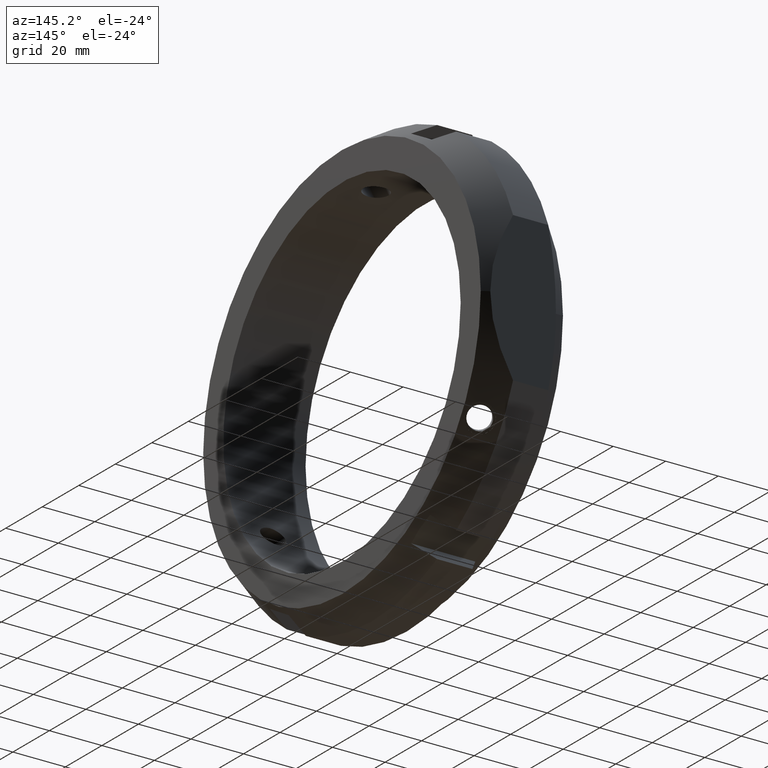
[diagram: clean part render]
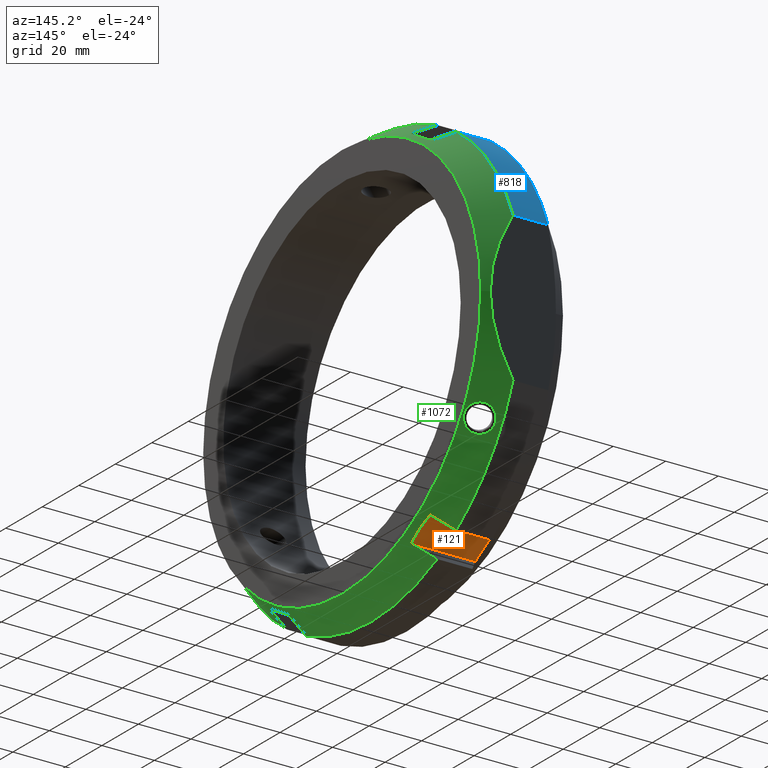
[diagram: same view with three faces highlighted in distinct colors, each labeled with its STEP entity id]
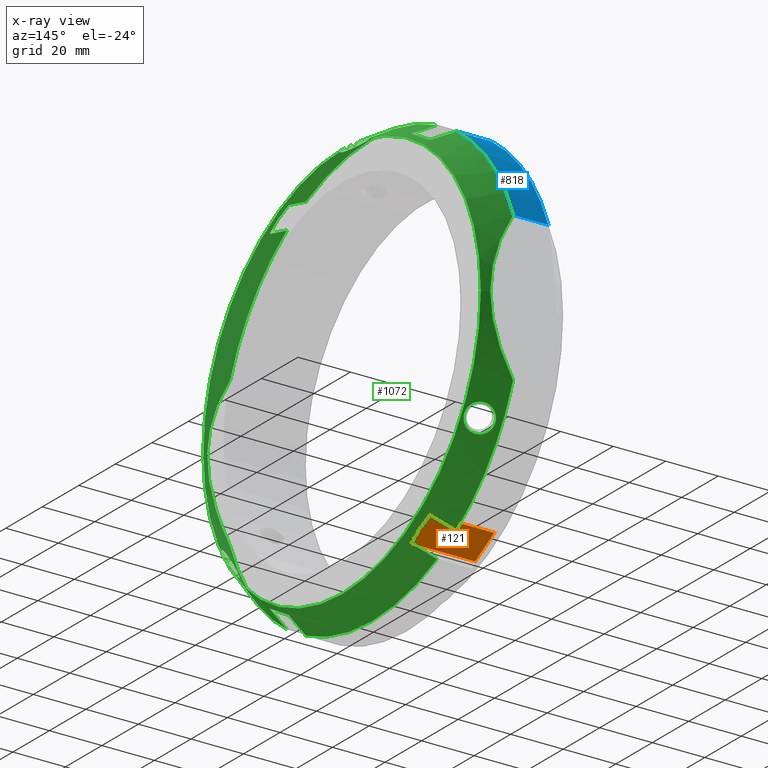
[diagram: x-ray of the same camera — body ghosted, the three highlighted faces saturated]
A machine part, auxiliary view with three faces highlighted in distinct colors.
The next image is the same camera in x-ray (body ghosted, the three faces saturated) — at least one of them is partly hidden behind the body in this view.
Their STEP definitions:

[orange] entity #121 — the highlighted planar face has unit normal (0, 0.5, -0.866).
#68=CARTESIAN_POINT('',(0.0,33.553847577293261,-70.116968793294049));
#69=DIRECTION('',(0.0,0.5,-0.866025403784439));
#70=DIRECTION('',(0.0,0.866025403784439,0.5));
#71=AXIS2_PLACEMENT_3D('',#68,#69,#70);
#72=PLANE('',#71);
#73=CARTESIAN_POINT('',(4.577269596886642,43.946152422706525,-64.116968793294063));
#74=VERTEX_POINT('',#73);
#75=CARTESIAN_POINT('',(4.577269596886655,33.553847577293261,-70.116968793294049));
#76=VERTEX_POINT('',#75);
#77=CARTESIAN_POINT('',(4.577269596886642,43.946152422706525,-64.116968793294063));
#78=CARTESIAN_POINT('',(4.309881218014403,38.749999999921442,-67.116968793339353));
#79=CARTESIAN_POINT('',(4.577269596886655,33.553847577293261,-70.116968793294049));
#87=(BOUNDED_CURVE()B_SPLINE_CURVE(2,(#77,#78,#79),.UNSPECIFIED.,.F.,.U.)B_SPLINE_CURVE_WITH_KNOTS((3,3),(2.221478164812504,3.464762538264855),.UNSPECIFIED.)CURVE()GEOMETRIC_REPRESENTATION_ITEM()RATIONAL_B_SPLINE_CURVE((1.030715906850744,1.033800222181514,1.030715906850744))REPRESENTATION_ITEM(''));
#88=EDGE_CURVE('',#74,#76,#87,.T.);
#89=ORIENTED_EDGE('',*,*,#88,.F.);
#90=CARTESIAN_POINT('',(29.000242016908871,43.946152422706525,-64.116968793294063));
#91=VERTEX_POINT('',#90);
#92=CARTESIAN_POINT('',(4.577269596886642,43.946152422706525,-64.116968793294063));
#93=DIRECTION('',(1.0,0.0,0.0));
#94=VECTOR('',#93,24.42297242002223);
#95=LINE('',#92,#94);
#96=EDGE_CURVE('',#74,#91,#95,.T.);
#97=ORIENTED_EDGE('',*,*,#96,.T.);
#98=CARTESIAN_POINT('',(29.000242016908821,33.553847577293269,-70.116968793294049));
#99=VERTEX_POINT('',#98);
#100=CARTESIAN_POINT('',(29.000242016908821,33.553847577293269,-70.116968793294049));
#101=CARTESIAN_POINT('',(29.80240715355486,38.750000000000064,-67.116968793293964));
#102=CARTESIAN_POINT('',(29.000242016908871,43.946152422706525,-64.116968793294063));
#110=(BOUNDED_CURVE()B_SPLINE_CURVE(2,(#100,#101,#102),.UNSPECIFIED.,.F.,.U.)B_SPLINE_CURVE_WITH_KNOTS((3,3),(2.311270793068732,3.604808990030873),.UNSPECIFIED.)CURVE()GEOMETRIC_REPRESENTATION_ITEM()RATIONAL_B_SPLINE_CURVE((1.03071590685069,1.033800222181565,1.03071590685069))REPRESENTATION_ITEM(''));
#111=EDGE_CURVE('',#99,#91,#110,.T.);
#112=ORIENTED_EDGE('',*,*,#111,.F.);
#113=CARTESIAN_POINT('',(4.577269596886655,33.553847577293261,-70.116968793294049));
#114=DIRECTION('',(1.0,0.0,0.0));
#115=VECTOR('',#114,24.422972420022166);
#116=LINE('',#113,#115);
#117=EDGE_CURVE('',#76,#99,#116,.T.);
#118=ORIENTED_EDGE('',*,*,#117,.F.);
#119=EDGE_LOOP('',(#89,#97,#112,#118));
#120=FACE_OUTER_BOUND('',#119,.T.);
#121=ADVANCED_FACE('',(#120),#72,.T.);

[blue] entity #818 — the highlighted cylindrical surface (partial cylindrical patch) has radius 82.5 mm, axis along (1, 0, 0).
#502=CARTESIAN_POINT('',(7.330127018922164,46.336916878413952,68.257894299509104));
#503=VERTEX_POINT('',#502);
#517=CARTESIAN_POINT('',(7.330127018922164,77.500000000000043,28.284271247461774));
#518=VERTEX_POINT('',#517);
#519=CARTESIAN_POINT('',(7.330127018922164,0.0,0.0));
#520=DIRECTION('',(1.0,0.0,0.0));
#521=DIRECTION('',(0.0,1.0,0.0));
#522=AXIS2_PLACEMENT_3D('',#519,#520,#521);
#523=CIRCLE('',#522,82.5);
#524=EDGE_CURVE('',#518,#503,#523,.T.);
#639=CARTESIAN_POINT('',(20.741669750802288,46.33691687841393,68.25789429950909));
#640=VERTEX_POINT('',#639);
#654=CARTESIAN_POINT('',(7.330127018922164,46.336916878413952,68.257894299509104));
#655=DIRECTION('',(1.0,0.0,0.0));
#656=VECTOR('',#655,13.411542731880125);
#657=LINE('',#654,#656);
#658=EDGE_CURVE('',#503,#640,#657,.T.);
#794=CARTESIAN_POINT('',(14.03589838486222,0.0,0.0));
#795=DIRECTION('',(1.0,0.0,0.0));
#796=DIRECTION('',(0.0,1.0,0.0));
#797=AXIS2_PLACEMENT_3D('',#794,#795,#796);
#798=CYLINDRICAL_SURFACE('',#797,82.5);
#799=ORIENTED_EDGE('',*,*,#658,.T.);
#800=CARTESIAN_POINT('',(20.741669750802277,77.500000000000043,28.284271247461774));
#801=VERTEX_POINT('',#800);
#802=CARTESIAN_POINT('',(20.741669750802277,0.0,0.0));
#803=DIRECTION('',(1.0,0.0,0.0));
#804=DIRECTION('',(0.0,1.0,0.0));
#805=AXIS2_PLACEMENT_3D('',#802,#803,#804);
#806=CIRCLE('',#805,82.5);
#807=EDGE_CURVE('',#801,#640,#806,.T.);
#808=ORIENTED_EDGE('',*,*,#807,.F.);
#809=CARTESIAN_POINT('',(20.741669750802277,77.500000000000043,28.284271247461774));
#810=DIRECTION('',(-1.0,0.0,0.0));
#811=VECTOR('',#810,13.411542731880115);
#812=LINE('',#809,#811);
#813=EDGE_CURVE('',#801,#518,#812,.T.);
#814=ORIENTED_EDGE('',*,*,#813,.T.);
#815=ORIENTED_EDGE('',*,*,#524,.T.);
#816=EDGE_LOOP('',(#799,#808,#814,#815));
#817=FACE_OUTER_BOUND('',#816,.T.);
#818=ADVANCED_FACE('',(#817),#798,.T.);

[green] entity #1072 — the highlighted conical surface has half-angle 30 deg.
#90=CARTESIAN_POINT('',(29.000242016908871,43.946152422706525,-64.116968793294063));
#91=VERTEX_POINT('',#90);
#98=CARTESIAN_POINT('',(29.000242016908821,33.553847577293269,-70.116968793294049));
#99=VERTEX_POINT('',#98);
#100=CARTESIAN_POINT('',(29.000242016908821,33.553847577293269,-70.116968793294049));
#101=CARTESIAN_POINT('',(29.80240715355486,38.750000000000064,-67.116968793293964));
#102=CARTESIAN_POINT('',(29.000242016908871,43.946152422706525,-64.116968793294063));
#110=(BOUNDED_CURVE()B_SPLINE_CURVE(2,(#100,#101,#102),.UNSPECIFIED.,.F.,.U.)B_SPLINE_CURVE_WITH_KNOTS((3,3),(2.311270793068732,3.604808990030873),.UNSPECIFIED.)CURVE()GEOMETRIC_REPRESENTATION_ITEM()RATIONAL_B_SPLINE_CURVE((1.03071590685069,1.033800222181565,1.03071590685069))REPRESENTATION_ITEM(''));
#111=EDGE_CURVE('',#99,#91,#110,.T.);
#143=CARTESIAN_POINT('',(20.741669750802284,35.944612033000681,-74.25789429950909));
#144=VERTEX_POINT('',#143);
#145=CARTESIAN_POINT('',(20.741669750802252,35.944612033000681,-74.25789429950909));
#146=CARTESIAN_POINT('',(24.994526468770935,34.713658316640021,-72.125819921006681));
#147=CARTESIAN_POINT('',(29.000242016908821,33.553847577293261,-70.116968793294063));
#155=(BOUNDED_CURVE()B_SPLINE_CURVE(2,(#145,#146,#147),.UNSPECIFIED.,.F.,.U.)B_SPLINE_CURVE_WITH_KNOTS((3,3),(0.0,0.954290494168795),.UNSPECIFIED.)CURVE()GEOMETRIC_REPRESENTATION_ITEM()RATIONAL_B_SPLINE_CURVE((1.0,1.000445548982902,1.0))REPRESENTATION_ITEM(''));
#156=EDGE_CURVE('',#144,#99,#155,.T.);
#187=CARTESIAN_POINT('',(20.741669750802288,46.33691687841393,-68.25789429950909));
#188=VERTEX_POINT('',#187);
#195=CARTESIAN_POINT('',(29.000242016908871,43.946152422706525,-64.116968793294049));
#196=CARTESIAN_POINT('',(24.994526489988509,45.105963155911013,-66.125819910367966));
#197=CARTESIAN_POINT('',(20.741669750802252,46.336916878413973,-68.257894299509104));
#205=(BOUNDED_CURVE()B_SPLINE_CURVE(2,(#195,#196,#197),.UNSPECIFIED.,.F.,.U.)B_SPLINE_CURVE_WITH_KNOTS((3,3),(0.0,0.954290494168801),.UNSPECIFIED.)CURVE()GEOMETRIC_REPRESENTATION_ITEM()RATIONAL_B_SPLINE_CURVE((1.0,1.000445549124951,1.0))REPRESENTATION_ITEM(''));
#206=EDGE_CURVE('',#91,#188,#205,.T.);
#234=CARTESIAN_POINT('',(29.000242016908835,-43.946152422706668,-64.116968793293992));
#235=VERTEX_POINT('',#234);
#242=CARTESIAN_POINT('',(20.741669750802252,-46.336916878414065,-68.257894299509033));
#243=VERTEX_POINT('',#242);
#244=CARTESIAN_POINT('',(20.741669750802252,-46.336916878414073,-68.257894299509033));
#245=CARTESIAN_POINT('',(24.994526517936748,-45.10596314782039,-66.125819896354301));
#246=CARTESIAN_POINT('',(29.000242016908835,-43.946152422706668,-64.116968793293978));
#254=(BOUNDED_CURVE()B_SPLINE_CURVE(2,(#244,#245,#246),.UNSPECIFIED.,.F.,.U.)B_SPLINE_CURVE_WITH_KNOTS((3,3),(0.0,0.954290494168798),.UNSPECIFIED.)CURVE()GEOMETRIC_REPRESENTATION_ITEM()RATIONAL_B_SPLINE_CURVE((1.0,1.000445549579714,1.0))REPRESENTATION_ITEM(''));
#255=EDGE_CURVE('',#243,#235,#254,.T.);
#288=CARTESIAN_POINT('',(20.741669750802274,-35.944612033000794,-74.257894299509019));
#289=VERTEX_POINT('',#288);
#296=CARTESIAN_POINT('',(29.000242016908825,-33.553847577293404,-70.116968793293978));
#297=VERTEX_POINT('',#296);
#298=CARTESIAN_POINT('',(29.000242016908825,-33.553847577293404,-70.116968793293978));
#299=CARTESIAN_POINT('',(24.994526532713408,-34.713658298129431,-72.125819888945102));
#300=CARTESIAN_POINT('',(20.741669750802252,-35.944612033000809,-74.257894299509033));
#308=(BOUNDED_CURVE()B_SPLINE_CURVE(2,(#298,#299,#300),.UNSPECIFIED.,.F.,.U.)B_SPLINE_CURVE_WITH_KNOTS((3,3),(0.0,0.954290494168796),.UNSPECIFIED.)CURVE()GEOMETRIC_REPRESENTATION_ITEM()RATIONAL_B_SPLINE_CURVE((1.0,1.000445549773669,1.0))REPRESENTATION_ITEM(''));
#309=EDGE_CURVE('',#297,#289,#308,.T.);
#339=CARTESIAN_POINT('',(29.000242016908835,-43.946152422706668,-64.116968793293992));
#340=CARTESIAN_POINT('',(29.802407153554832,-38.749999999999872,-67.116968793294092));
#341=CARTESIAN_POINT('',(29.000242016908825,-33.553847577293404,-70.116968793293978));
#349=(BOUNDED_CURVE()B_SPLINE_CURVE(2,(#339,#340,#341),.UNSPECIFIED.,.F.,.U.)B_SPLINE_CURVE_WITH_KNOTS((3,3),(2.311270793068733,3.604808990030873),.UNSPECIFIED.)CURVE()GEOMETRIC_REPRESENTATION_ITEM()RATIONAL_B_SPLINE_CURVE((1.03071590685069,1.033800222181565,1.03071590685069))REPRESENTATION_ITEM(''));
#350=EDGE_CURVE('',#235,#297,#349,.T.);
#557=CARTESIAN_POINT('',(20.741669750802277,0.0,0.0));
#558=DIRECTION('',(1.0,0.0,0.0));
#559=DIRECTION('',(0.0,1.0,0.0));
#560=AXIS2_PLACEMENT_3D('',#557,#558,#559);
#561=CIRCLE('',#560,82.5);
#562=EDGE_CURVE('',#289,#144,#561,.T.);
#575=CARTESIAN_POINT('',(20.741669750802277,-77.500000000000028,-28.284271247461827));
#576=VERTEX_POINT('',#575);
#577=CARTESIAN_POINT('',(20.741669750802277,0.0,0.0));
#578=DIRECTION('',(1.0,0.0,0.0));
#579=DIRECTION('',(0.0,1.0,0.0));
#580=AXIS2_PLACEMENT_3D('',#577,#578,#579);
#581=CIRCLE('',#580,82.5);
#582=EDGE_CURVE('',#576,#243,#581,.T.);
#600=CARTESIAN_POINT('',(29.000242016908821,33.553847577293269,70.116968793294049));
#601=VERTEX_POINT('',#600);
#608=CARTESIAN_POINT('',(29.000242016908871,43.946152422706525,64.116968793294063));
#609=VERTEX_POINT('',#608);
#610=CARTESIAN_POINT('',(29.000242016908871,43.946152422706525,64.116968793294063));
#611=CARTESIAN_POINT('',(29.802407153554846,38.74999999999973,67.116968793294149));
#612=CARTESIAN_POINT('',(29.000242016908821,33.553847577293269,70.116968793294049));
#620=(BOUNDED_CURVE()B_SPLINE_CURVE(2,(#610,#611,#612),.UNSPECIFIED.,.F.,.U.)B_SPLINE_CURVE_WITH_KNOTS((3,3),(2.311270793068756,3.604808990030896),.UNSPECIFIED.)CURVE()GEOMETRIC_REPRESENTATION_ITEM()RATIONAL_B_SPLINE_CURVE((1.03071590685069,1.033800222181566,1.03071590685069))REPRESENTATION_ITEM(''));
#621=EDGE_CURVE('',#609,#601,#620,.T.);
#639=CARTESIAN_POINT('',(20.741669750802288,46.33691687841393,68.25789429950909));
#640=VERTEX_POINT('',#639);
#641=CARTESIAN_POINT('',(20.741669750802274,46.336916878413952,68.257894299509104));
#642=CARTESIAN_POINT('',(24.994526497215375,45.105963153818429,66.125819906743487));
#643=CARTESIAN_POINT('',(29.000242016908871,43.946152422706525,64.116968793294063));
#651=(BOUNDED_CURVE()B_SPLINE_CURVE(2,(#641,#642,#643),.UNSPECIFIED.,.F.,.U.)B_SPLINE_CURVE_WITH_KNOTS((3,3),(0.0,0.92385195676035),.UNSPECIFIED.)CURVE()GEOMETRIC_REPRESENTATION_ITEM()RATIONAL_B_SPLINE_CURVE((1.0,1.000936229417158,1.000981163730481))REPRESENTATION_ITEM(''));
#652=EDGE_CURVE('',#640,#609,#651,.T.);
#669=CARTESIAN_POINT('',(20.741669750802284,35.944612033000681,74.25789429950909));
#670=VERTEX_POINT('',#669);
#677=CARTESIAN_POINT('',(29.000242016908821,33.553847577293269,70.116968793294049));
#678=CARTESIAN_POINT('',(24.994526489109678,34.713658310752926,72.125819910809923));
#679=CARTESIAN_POINT('',(20.741669750802274,35.944612033000681,74.25789429950909));
#687=(BOUNDED_CURVE()B_SPLINE_CURVE(2,(#677,#678,#679),.UNSPECIFIED.,.F.,.U.)B_SPLINE_CURVE_WITH_KNOTS((3,3),(1.017003264891441,1.940855223588048),.UNSPECIFIED.)CURVE()GEOMETRIC_REPRESENTATION_ITEM()RATIONAL_B_SPLINE_CURVE((1.000981163471717,1.000936229172027,1.0))REPRESENTATION_ITEM(''));
#688=EDGE_CURVE('',#601,#670,#687,.T.);
#700=CARTESIAN_POINT('',(29.000242016908835,-43.946152422706668,64.116968793293992));
#701=VERTEX_POINT('',#700);
#708=CARTESIAN_POINT('',(29.000242016908825,-33.553847577293404,70.116968793293978));
#709=VERTEX_POINT('',#708);
#710=CARTESIAN_POINT('',(29.000242016908825,-33.553847577293404,70.116968793293978));
#711=CARTESIAN_POINT('',(29.802407153554853,-38.750000000000192,67.116968793293893));
#712=CARTESIAN_POINT('',(29.000242016908835,-43.946152422706668,64.116968793293992));
#720=(BOUNDED_CURVE()B_SPLINE_CURVE(2,(#710,#711,#712),.UNSPECIFIED.,.F.,.U.)B_SPLINE_CURVE_WITH_KNOTS((3,3),(2.311270793068746,3.604808990030887),.UNSPECIFIED.)CURVE()GEOMETRIC_REPRESENTATION_ITEM()RATIONAL_B_SPLINE_CURVE((1.03071590685069,1.033800222181565,1.03071590685069))REPRESENTATION_ITEM(''));
#721=EDGE_CURVE('',#709,#701,#720,.T.);
#739=CARTESIAN_POINT('',(20.741669750802274,-35.944612033000794,74.257894299509019));
#740=VERTEX_POINT('',#739);
#741=CARTESIAN_POINT('',(20.741669750802274,-35.944612033000794,74.257894299509019));
#742=CARTESIAN_POINT('',(24.994526497854004,-34.713658308220303,72.125819906423004));
#743=CARTESIAN_POINT('',(29.000242016908825,-33.553847577293404,70.116968793293978));
#751=(BOUNDED_CURVE()B_SPLINE_CURVE(2,(#741,#742,#743),.UNSPECIFIED.,.F.,.U.)B_SPLINE_CURVE_WITH_KNOTS((3,3),(0.0,0.923851956604291),.UNSPECIFIED.)CURVE()GEOMETRIC_REPRESENTATION_ITEM()RATIONAL_B_SPLINE_CURVE((1.0,1.00093622943326,1.000981163747507))REPRESENTATION_ITEM(''));
#752=EDGE_CURVE('',#740,#709,#751,.T.);
#769=CARTESIAN_POINT('',(20.741669750802252,-46.336916878414065,68.257894299509033));
#770=VERTEX_POINT('',#769);
#777=CARTESIAN_POINT('',(29.000242016908835,-43.946152422706668,64.116968793293992));
#778=CARTESIAN_POINT('',(24.994526497239224,-45.105963153811643,66.125819906731451));
#779=CARTESIAN_POINT('',(20.741669750802274,-46.336916878414065,68.257894299509033));
#787=(BOUNDED_CURVE()B_SPLINE_CURVE(2,(#777,#778,#779),.UNSPECIFIED.,.F.,.U.)B_SPLINE_CURVE_WITH_KNOTS((3,3),(1.017003266827564,1.940855223588048),.UNSPECIFIED.)CURVE()GEOMETRIC_REPRESENTATION_ITEM()RATIONAL_B_SPLINE_CURVE((1.000981163736865,1.000936229423249,1.0))REPRESENTATION_ITEM(''));
#788=EDGE_CURVE('',#701,#770,#787,.T.);
#800=CARTESIAN_POINT('',(20.741669750802277,77.500000000000043,28.284271247461774));
#801=VERTEX_POINT('',#800);
#802=CARTESIAN_POINT('',(20.741669750802277,0.0,0.0));
#803=DIRECTION('',(1.0,0.0,0.0));
#804=DIRECTION('',(0.0,1.0,0.0));
#805=AXIS2_PLACEMENT_3D('',#802,#803,#804);
#806=CIRCLE('',#805,82.5);
#807=EDGE_CURVE('',#801,#640,#806,.T.);
#826=CARTESIAN_POINT('',(20.741669750802277,-77.500000000000043,28.284271247461774));
#827=VERTEX_POINT('',#826);
#834=CARTESIAN_POINT('',(20.741669750802277,0.0,0.0));
#835=DIRECTION('',(1.0,0.0,0.0));
#836=DIRECTION('',(0.0,1.0,0.0));
#837=AXIS2_PLACEMENT_3D('',#834,#835,#836);
#838=CIRCLE('',#837,82.5);
#839=EDGE_CURVE('',#770,#827,#838,.T.);
#851=CARTESIAN_POINT('',(20.741669750802277,77.500000000000028,-28.284271247461827));
#852=VERTEX_POINT('',#851);
#853=CARTESIAN_POINT('',(20.741669750802277,77.500000000000014,-28.284271247461863));
#854=CARTESIAN_POINT('',(37.537313945409501,77.500000000000028,-3.350699E-014));
#855=CARTESIAN_POINT('',(20.741669750802274,77.500000000000043,28.284271247461803));
#863=(BOUNDED_CURVE()B_SPLINE_CURVE(2,(#853,#854,#855),.UNSPECIFIED.,.F.,.U.)B_SPLINE_CURVE_WITH_KNOTS((3,3),(0.0,5.9160797830996),.UNSPECIFIED.)CURVE()GEOMETRIC_REPRESENTATION_ITEM()RATIONAL_B_SPLINE_CURVE((1.0,1.064516129032256,1.0))REPRESENTATION_ITEM(''));
#864=EDGE_CURVE('',#852,#801,#863,.T.);
#882=CARTESIAN_POINT('',(20.741669750802274,-77.500000000000043,28.284271247461803));
#883=CARTESIAN_POINT('',(37.537313945409501,-77.500000000000028,-3.108624E-014));
#884=CARTESIAN_POINT('',(20.741669750802274,-77.500000000000014,-28.284271247461863));
#892=(BOUNDED_CURVE()B_SPLINE_CURVE(2,(#882,#883,#884),.UNSPECIFIED.,.F.,.U.)B_SPLINE_CURVE_WITH_KNOTS((3,3),(0.0,5.9160797830996),.UNSPECIFIED.)CURVE()GEOMETRIC_REPRESENTATION_ITEM()RATIONAL_B_SPLINE_CURVE((1.0,1.064516129032256,1.0))REPRESENTATION_ITEM(''));
#893=EDGE_CURVE('',#827,#576,#892,.T.);
#899=CARTESIAN_POINT('',(26.37083487540113,0.0,0.0));
#900=DIRECTION('',(-1.0,0.0,0.0));
#901=DIRECTION('',(0.0,1.0,0.0));
#902=AXIS2_PLACEMENT_3D('',#899,#900,#901);
#903=CONICAL_SURFACE('',#902,79.25,29.999999999999972);
#904=ORIENTED_EDGE('',*,*,#206,.T.);
#905=CARTESIAN_POINT('',(20.741669750802277,0.0,0.0));
#906=DIRECTION('',(1.0,0.0,0.0));
#907=DIRECTION('',(0.0,1.0,0.0));
#908=AXIS2_PLACEMENT_3D('',#905,#906,#907);
#909=CIRCLE('',#908,82.5);
#910=EDGE_CURVE('',#188,#852,#909,.T.);
#911=ORIENTED_EDGE('',*,*,#910,.T.);
#912=ORIENTED_EDGE('',*,*,#864,.T.);
#913=ORIENTED_EDGE('',*,*,#807,.T.);
#914=ORIENTED_EDGE('',*,*,#652,.T.);
#915=ORIENTED_EDGE('',*,*,#621,.T.);
#916=ORIENTED_EDGE('',*,*,#688,.T.);
#917=CARTESIAN_POINT('',(20.741669750802277,0.0,0.0));
#918=DIRECTION('',(1.0,0.0,0.0));
#919=DIRECTION('',(0.0,1.0,0.0));
#920=AXIS2_PLACEMENT_3D('',#917,#918,#919);
#921=CIRCLE('',#920,82.5);
#922=EDGE_CURVE('',#670,#740,#921,.T.);
#923=ORIENTED_EDGE('',*,*,#922,.T.);
#924=ORIENTED_EDGE('',*,*,#752,.T.);
#925=ORIENTED_EDGE('',*,*,#721,.T.);
#926=ORIENTED_EDGE('',*,*,#788,.T.);
#927=ORIENTED_EDGE('',*,*,#839,.T.);
#928=ORIENTED_EDGE('',*,*,#893,.T.);
#929=ORIENTED_EDGE('',*,*,#582,.T.);
#930=ORIENTED_EDGE('',*,*,#255,.T.);
#931=ORIENTED_EDGE('',*,*,#350,.T.);
#932=ORIENTED_EDGE('',*,*,#309,.T.);
#933=ORIENTED_EDGE('',*,*,#562,.T.);
#934=ORIENTED_EDGE('',*,*,#156,.T.);
#935=ORIENTED_EDGE('',*,*,#111,.T.);
#936=EDGE_LOOP('',(#904,#911,#912,#913,#914,#915,#916,#923,#924,#925,#926,#927,#928,#929,#930,#931,#932,#933,#934,#935));
#937=FACE_OUTER_BOUND('',#936,.T.);
#938=CARTESIAN_POINT('',(31.999999999999986,76.0,0.0));
#939=VERTEX_POINT('',#938);
#940=CARTESIAN_POINT('',(31.999999999999986,0.0,0.0));
#941=DIRECTION('',(1.0,0.0,0.0));
#942=DIRECTION('',(0.0,1.0,0.0));
#943=AXIS2_PLACEMENT_3D('',#940,#941,#942);
#944=CIRCLE('',#943,76.0);
#945=EDGE_CURVE('',#939,#939,#944,.T.);
#946=ORIENTED_EDGE('',*,*,#945,.F.);
#947=EDGE_LOOP('',(#946));
#948=FACE_BOUND('',#947,.T.);
#949=CARTESIAN_POINT('',(27.105330685345539,5.097333498145177,78.660954702420639));
#950=VERTEX_POINT('',#949);
#951=CARTESIAN_POINT('',(27.105330685345539,5.097333498145177,78.660954702420639));
#952=CARTESIAN_POINT('',(27.648101292626865,5.077069292151664,78.348241831992141));
#953=CARTESIAN_POINT('',(28.227898568073169,4.932864116040043,78.022448148396279));
#954=CARTESIAN_POINT('',(29.296696060288802,4.393098822977761,77.436648696942015));
#955=CARTESIAN_POINT('',(29.785523326269157,3.997545933685489,77.176320775876576));
#956=CARTESIAN_POINT('',(30.558051859458438,3.097354386627446,76.77131440210546));
#957=CARTESIAN_POINT('',(30.894383902774432,2.531358132547983,76.598976935060719));
#958=CARTESIAN_POINT('',(31.340808209612852,1.296050635139336,76.372061063472529));
#959=CARTESIAN_POINT('',(31.450694903109351,0.626727811679925,76.317141445557041));
#960=CARTESIAN_POINT('',(31.450694903109351,-0.626727811679925,76.317141445557041));
#961=CARTESIAN_POINT('',(31.340808209612852,-1.296050635139329,76.372061063472529));
#962=CARTESIAN_POINT('',(30.894383902774432,-2.531358132547978,76.598976935060719));
#963=CARTESIAN_POINT('',(30.558051859458438,-3.097354386627446,76.77131440210546));
#964=CARTESIAN_POINT('',(29.785523326269157,-3.99754593368549,77.176320775876576));
#965=CARTESIAN_POINT('',(29.296696060288802,-4.393098822977761,77.436648696942015));
#966=CARTESIAN_POINT('',(28.227898568073169,-4.932864116040043,78.022448148396279));
#967=CARTESIAN_POINT('',(27.648101292626876,-5.077069292151661,78.348241831992141));
#968=CARTESIAN_POINT('',(26.538665184133023,-5.118489814076699,78.98743442162386));
#969=CARTESIAN_POINT('',(25.935307622568814,-5.007521965891141,79.344049132874844));
#970=CARTESIAN_POINT('',(24.827891894014201,-4.507796006147203,80.014393371915446));
#971=CARTESIAN_POINT('',(24.32361781251344,-4.119045397855245,80.327771736777464));
#972=CARTESIAN_POINT('',(23.527813469199049,-3.209116054918225,80.829080877532462));
#973=CARTESIAN_POINT('',(23.184347705608779,-2.628592723107625,81.049647528323703));
#974=CARTESIAN_POINT('',(22.729148704361126,-1.351204928193551,81.343840807298733));
#975=CARTESIAN_POINT('',(22.617235784508058,-0.654329443989063,81.41714144555705));
#976=CARTESIAN_POINT('',(22.617235784508058,0.654329443989062,81.41714144555705));
#977=CARTESIAN_POINT('',(22.72914870436113,1.351204928193545,81.343840807298733));
#978=CARTESIAN_POINT('',(23.184347705608779,2.628592723107621,81.049647528323703));
#979=CARTESIAN_POINT('',(23.527813469199053,3.209116054918224,80.829080877532462));
#980=CARTESIAN_POINT('',(24.32361781251344,4.119045397855244,80.327771736777493));
#981=CARTESIAN_POINT('',(24.827891894014197,4.507796006147197,80.014393371915446));
#982=CARTESIAN_POINT('',(25.935307622568814,5.00752196589114,79.344049132874844));
#983=CARTESIAN_POINT('',(26.538665184133023,5.1184898140767,78.98743442162386));
#984=CARTESIAN_POINT('',(27.10533068534555,5.097333498145177,78.660954702420639));
#985=B_SPLINE_CURVE_WITH_KNOTS('',3,(#951,#952,#953,#954,#955,#956,#957,#958,#959,#960,#961,#962,#963,#964,#965,#966,#967,#968,#969,#970,#971,#972,#973,#974,#975,#976,#977,#978,#979,#980,#981,#982,#983,#984),.UNSPECIFIED.,.T.,.U.,(4,2,2,2,2,2,2,2,2,2,2,2,2,2,2,2,4),(0.0,0.188021253733255,0.37604250746651,0.564060850970487,0.752079194474465,0.940097537978443,1.12811588148242,1.316137135215675,1.50415838894893,1.700457076748244,1.896755764547558,2.093054597744277,2.289353430940996,2.485652264137714,2.681951097334433,2.878249785133747,3.074548472933061),.UNSPECIFIED.);
#986=EDGE_CURVE('',#950,#950,#985,.T.);
#987=ORIENTED_EDGE('',*,*,#986,.T.);
#988=EDGE_LOOP('',(#987));
#989=FACE_BOUND('',#988,.T.);
#990=CARTESIAN_POINT('',(27.105330685345542,-70.671051807305872,-34.916057050255183));
#991=VERTEX_POINT('',#990);
#992=CARTESIAN_POINT('',(27.105330685345542,-70.671051807305872,-34.916057050255183));
#993=CARTESIAN_POINT('',(27.648101292626876,-70.390102414427687,-34.777249932218837));
#994=CARTESIAN_POINT('',(28.227898568073172,-70.035854219985339,-34.739238436290776));
#995=CARTESIAN_POINT('',(29.296696060288795,-69.258654366971811,-34.913789166436729));
#996=CARTESIAN_POINT('',(29.785523326269157,-68.835427329368628,-35.126184056571446));
#997=CARTESIAN_POINT('',(30.558051859458438,-68.034585747459204,-35.70326961771017));
#998=CARTESIAN_POINT('',(30.894383902774432,-67.602338995934844,-36.107268018667455));
#999=CARTESIAN_POINT('',(31.340808209612842,-66.788170337913272,-37.063617757114628));
#1000=CARTESIAN_POINT('',(31.450694903109351,-66.405947141902629,-37.615808516605455));
#1001=CARTESIAN_POINT('',(31.450694903109351,-65.779219330222702,-38.701332928951551));
#1002=CARTESIAN_POINT('',(31.340808209612838,-65.492119702773934,-39.308443306357866));
#1003=CARTESIAN_POINT('',(30.894383902774429,-65.070980863386879,-40.491708916393222));
#1004=CARTESIAN_POINT('',(30.558051859458438,-64.93723136083176,-41.068044784395248));
#1005=CARTESIAN_POINT('',(29.785523326269157,-64.837881395683141,-42.050136719305087));
#1006=CARTESIAN_POINT('',(29.296696060288795,-64.865555543994049,-42.522859530505244));
#1007=CARTESIAN_POINT('',(28.227898568073172,-65.102990103945302,-43.28320971210546));
#1008=CARTESIAN_POINT('',(27.648101292626883,-65.313033122276039,-43.570991899773276));
#1009=CARTESIAN_POINT('',(26.538665184133031,-65.845879881845349,-43.926459418814225));
#1010=CARTESIAN_POINT('',(25.935307622568832,-66.210201205244715,-44.008665798907728));
#1011=CARTESIAN_POINT('',(24.827891894014211,-67.040599325406404,-43.911062542359218));
#1012=CARTESIAN_POINT('',(24.32361781251344,-67.50636825451933,-43.731083822272758));
#1013=CARTESIAN_POINT('',(23.527813469199049,-68.395479377031009,-43.193716466017904));
#1014=CARTESIAN_POINT('',(23.184347705608772,-68.876757365749171,-42.801251838575951));
#1015=CARTESIAN_POINT('',(22.729148704361116,-69.770230116421217,-41.842098197183681));
#1016=CARTESIAN_POINT('',(22.617235784508061,-70.182148073368779,-41.275236643717186));
#1017=CARTESIAN_POINT('',(22.617235784508061,-70.836477517357835,-40.141904801839843));
#1018=CARTESIAN_POINT('',(22.729148704361116,-71.121435044614742,-39.501742610115009));
#1019=CARTESIAN_POINT('',(23.184347705608765,-71.505350088856773,-38.248395689747724));
#1020=CARTESIAN_POINT('',(23.527813469199046,-71.604595431949235,-37.635364411514544));
#1021=CARTESIAN_POINT('',(24.32361781251344,-71.62541365237459,-36.596687914504706));
#1022=CARTESIAN_POINT('',(24.82789189401419,-71.548395331553593,-36.103330829556207));
#1023=CARTESIAN_POINT('',(25.935307622568807,-71.217723171135844,-35.335383333967087));
#1024=CARTESIAN_POINT('',(26.53866518413302,-70.964369695922045,-35.060975002809606));
#1025=CARTESIAN_POINT('',(27.105330685345542,-70.671051807305872,-34.916057050255183));
#1026=B_SPLINE_CURVE_WITH_KNOTS('',3,(#992,#993,#994,#995,#996,#997,#998,#999,#1000,#1001,#1002,#1003,#1004,#1005,#1006,#1007,#1008,#1009,#1010,#1011,#1012,#1013,#1014,#1015,#1016,#1017,#1018,#1019,#1020,#1021,#1022,#1023,#1024,#1025),.UNSPECIFIED.,.T.,.U.,(4,2,2,2,2,2,2,2,2,2,2,2,2,2,2,2,4),(0.0,0.188021253733255,0.37604250746651,0.564060850970488,0.752079194474466,0.940097537978444,1.128115881482422,1.316137135215677,1.504158388948932,1.700457076748246,1.89675576454756,2.093054597744279,2.289353430940997,2.485652264137716,2.681951097334435,2.878249785133749,3.074548472933064),.UNSPECIFIED.);
#1027=EDGE_CURVE('',#991,#991,#1026,.T.);
#1028=ORIENTED_EDGE('',*,*,#1027,.T.);
#1029=EDGE_LOOP('',(#1028));
#1030=FACE_BOUND('',#1029,.T.);
#1031=CARTESIAN_POINT('',(27.105330685345542,65.573718309160668,-43.744897652165484));
#1032=VERTEX_POINT('',#1031);
#1033=CARTESIAN_POINT('',(27.105330685345542,65.573718309160668,-43.744897652165484));
#1034=CARTESIAN_POINT('',(27.648101292626876,65.313033122275982,-43.570991899773333));
#1035=CARTESIAN_POINT('',(28.227898568073169,65.102990103945274,-43.283209712105517));
#1036=CARTESIAN_POINT('',(29.296696060288792,64.865555543994006,-42.522859530505301));
#1037=CARTESIAN_POINT('',(29.785523326269157,64.837881395683098,-42.050136719305144));
#1038=CARTESIAN_POINT('',(30.558051859458434,64.937231360831731,-41.068044784395298));
#1039=CARTESIAN_POINT('',(30.894383902774429,65.070980863386836,-40.491708916393286));
#1040=CARTESIAN_POINT('',(31.340808209612842,65.492119702773891,-39.308443306357923));
#1041=CARTESIAN_POINT('',(31.450694903109351,65.779219330222674,-38.701332928951608));
#1042=CARTESIAN_POINT('',(31.450694903109351,66.405947141902601,-37.615808516605519));
#1043=CARTESIAN_POINT('',(31.340808209612842,66.788170337913243,-37.063617757114685));
#1044=CARTESIAN_POINT('',(30.894383902774422,67.602338995934829,-36.107268018667511));
#1045=CARTESIAN_POINT('',(30.558051859458438,68.034585747459175,-35.703269617710234));
#1046=CARTESIAN_POINT('',(29.785523326269157,68.835427329368599,-35.126184056571503));
#1047=CARTESIAN_POINT('',(29.296696060288792,69.258654366971783,-34.913789166436786));
#1048=CARTESIAN_POINT('',(28.227898568073165,70.035854219985325,-34.739238436290833));
#1049=CARTESIAN_POINT('',(27.648101292626876,70.390102414427659,-34.777249932218901));
#1050=CARTESIAN_POINT('',(26.538665184133023,70.964369695922016,-35.06097500280967));
#1051=CARTESIAN_POINT('',(25.935307622568811,71.21772317113583,-35.335383333967144));
#1052=CARTESIAN_POINT('',(24.82789189401419,71.548395331553564,-36.103330829556263));
#1053=CARTESIAN_POINT('',(24.323617812513433,71.625413652374561,-36.596687914504777));
#1054=CARTESIAN_POINT('',(23.527813469199046,71.604595431949193,-37.635364411514608));
#1055=CARTESIAN_POINT('',(23.184347705608769,71.505350088856744,-38.248395689747781));
#1056=CARTESIAN_POINT('',(22.729148704361123,71.121435044614728,-39.501742610115059));
#1057=CARTESIAN_POINT('',(22.617235784508058,70.836477517357807,-40.1419048018399));
#1058=CARTESIAN_POINT('',(22.617235784508058,70.182148073368751,-41.275236643717236));
#1059=CARTESIAN_POINT('',(22.72914870436113,69.770230116421175,-41.842098197183752));
#1060=CARTESIAN_POINT('',(23.184347705608786,68.876757365749114,-42.801251838576022));
#1061=CARTESIAN_POINT('',(23.527813469199053,68.395479377030966,-43.19371646601796));
#1062=CARTESIAN_POINT('',(24.32361781251344,67.506368254519316,-43.731083822272808));
#1063=CARTESIAN_POINT('',(24.827891894014201,67.040599325406362,-43.911062542359282));
#1064=CARTESIAN_POINT('',(25.935307622568825,66.210201205244687,-44.008665798907785));
#1065=CARTESIAN_POINT('',(26.53866518413302,65.845879881845292,-43.926459418814289));
#1066=CARTESIAN_POINT('',(27.105330685345542,65.573718309160654,-43.744897652165484));
#1067=B_SPLINE_CURVE_WITH_KNOTS('',3,(#1033,#1034,#1035,#1036,#1037,#1038,#1039,#1040,#1041,#1042,#1043,#1044,#1045,#1046,#1047,#1048,#1049,#1050,#1051,#1052,#1053,#1054,#1055,#1056,#1057,#1058,#1059,#1060,#1061,#1062,#1063,#1064,#1065,#1066),.UNSPECIFIED.,.T.,.U.,(4,2,2,2,2,2,2,2,2,2,2,2,2,2,2,2,4),(0.0,0.188021253733255,0.37604250746651,0.564060850970488,0.752079194474465,0.940097537978443,1.128115881482421,1.316137135215676,1.504158388948931,1.700457076748245,1.89675576454756,2.093054597744279,2.289353430940997,2.485652264137716,2.681951097334435,2.878249785133749,3.074548472933063),.UNSPECIFIED.);
#1068=EDGE_CURVE('',#1032,#1032,#1067,.T.);
#1069=ORIENTED_EDGE('',*,*,#1068,.T.);
#1070=EDGE_LOOP('',(#1069));
#1071=FACE_BOUND('',#1070,.T.);
#1072=ADVANCED_FACE('',(#937,#948,#989,#1030,#1071),#903,.T.);